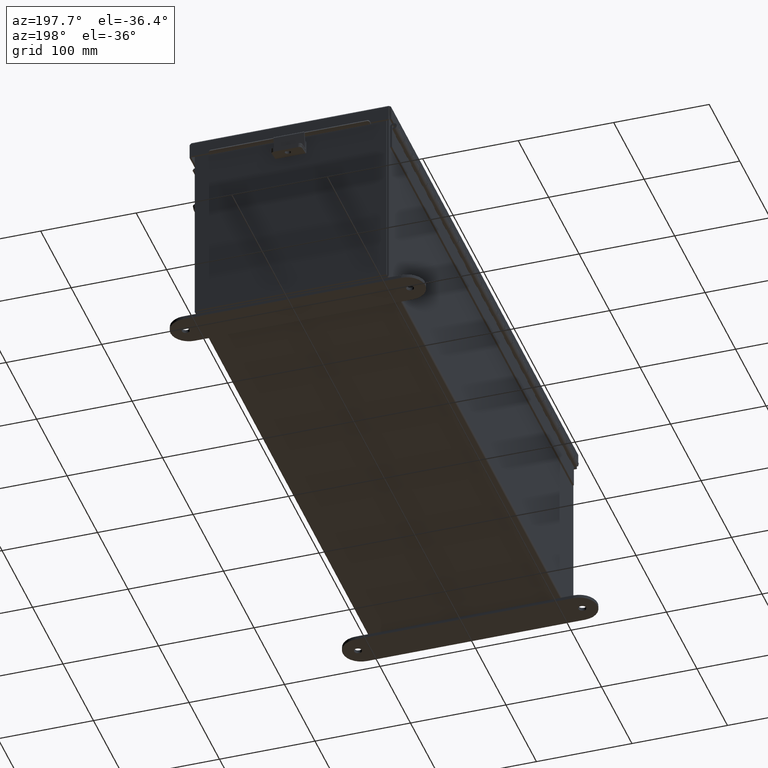
[diagram: clean part render]
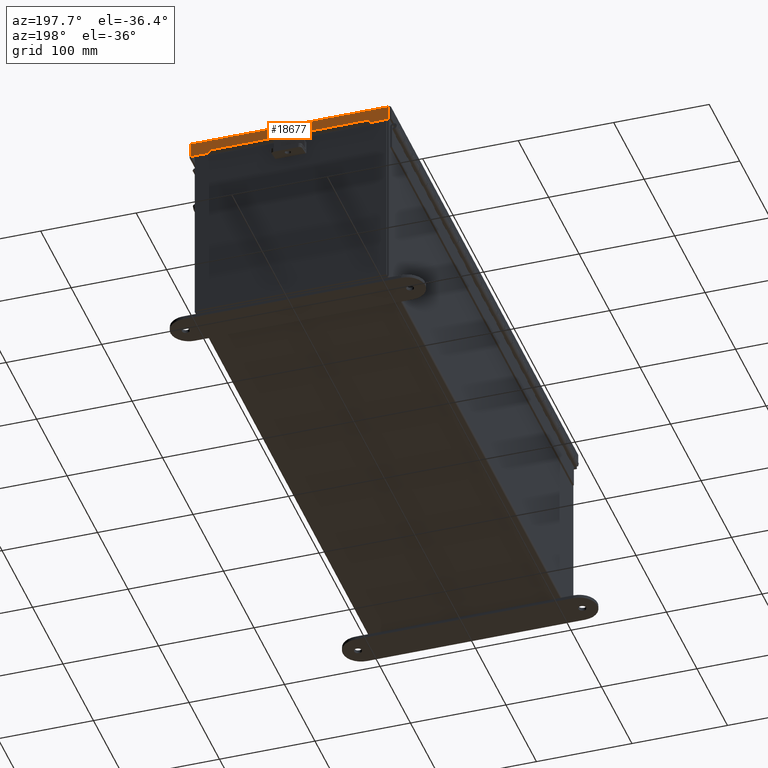
[diagram: same view with one face highlighted and labeled with its STEP entity id]
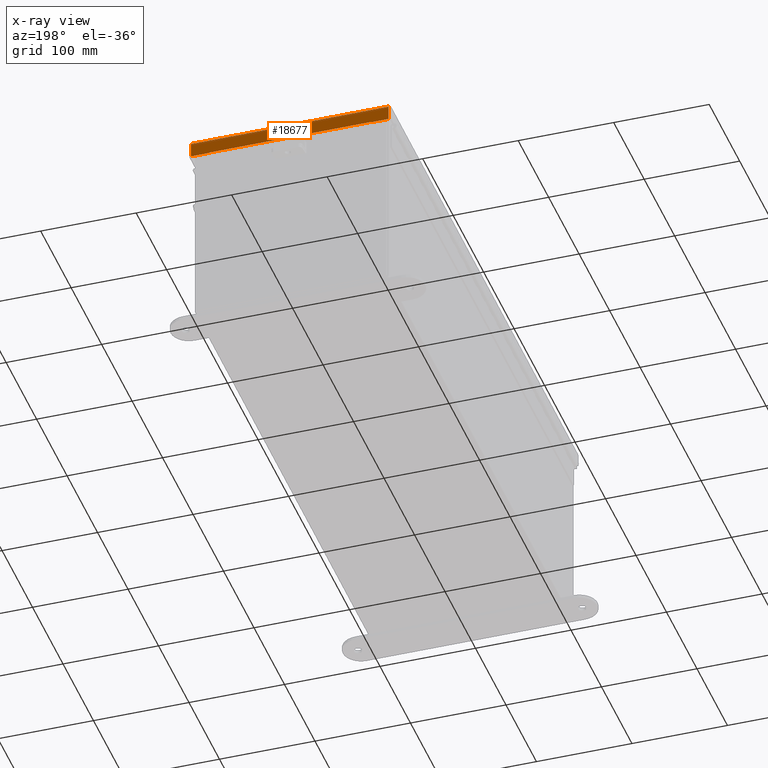
[diagram: x-ray of the same camera — body ghosted, the highlighted face saturated]
A machine part, auxiliary view. The second image highlights one B-rep face of the part: STEP entity #18677.
The next image is the same camera in x-ray: the body ghosted, the highlighted face saturated — about 0% of this face is hidden behind the body in this view.
In plain terms, the highlighted planar face has unit normal (-0, -1, -0).
Its self-contained STEP definition (entity closure, byte-faithful):
#241 = VERTEX_POINT ( 'NONE', #8591 ) ;
#270 = LINE ( 'NONE', #11822, #18362 ) ;
#674 = DIRECTION ( 'NONE',  ( -1.401985044024272200E-013, -1.401985044024272200E-013, -1.000000000000000000 ) ) ;
#724 = VECTOR ( 'NONE', #674, 39.37007874015748100 ) ;
#1341 = DIRECTION ( 'NONE',  ( -2.922740589190080400E-032, -1.000000000000000000, 3.569293475308526100E-015 ) ) ;
#2226 = EDGE_CURVE ( 'NONE', #18067, #19550, #3474, .T. ) ;
#2588 = CARTESIAN_POINT ( 'NONE',  ( -5.335640612625514100E-018, 12.15625000000000000, 0.6122999999999994000 ) ) ;
#2689 = VECTOR ( 'NONE', #20770, 39.37007874015748100 ) ;
#3181 = CARTESIAN_POINT ( 'NONE',  ( -4.074478932188135600, 12.15624999999999800, 0.01300000000000010700 ) ) ;
#3474 = LINE ( 'NONE', #2588, #12225 ) ;
#4222 = EDGE_LOOP ( 'NONE', ( #16762, #7912, #6290, #20990, #14218, #7021, #11458, #10936 ) ) ;
#4854 = CARTESIAN_POINT ( 'NONE',  ( 4.074478932188130300, 12.15624999999999800, 0.0000000000000000000 ) ) ;
#5229 = VERTEX_POINT ( 'NONE', #7531 ) ;
#5827 = CARTESIAN_POINT ( 'NONE',  ( 3.324478932188128500, 12.15625000000000000, 0.5967115427318815400 ) ) ;
#5846 = VECTOR ( 'NONE', #14299, 39.37007874015748100 ) ;
#5923 = LINE ( 'NONE', #21713, #724 ) ;
#6048 = DIRECTION ( 'NONE',  ( 1.000000000000000000, -1.415839178030353600E-032, -0.0000000000000000000 ) ) ;
#6148 = CARTESIAN_POINT ( 'NONE',  ( -4.074478932188140100, 12.15624999999999800, -4.370956789862821100E-014 ) ) ;
#6290 = ORIENTED_EDGE ( 'NONE', *, *, #20469, .F. ) ;
#6615 = DIRECTION ( 'NONE',  ( -0.0000000000000000000, 3.569293475308526100E-015, 1.000000000000000000 ) ) ;
#6779 = LINE ( 'NONE', #18908, #2689 ) ;
#7021 = ORIENTED_EDGE ( 'NONE', *, *, #20474, .T. ) ;
#7531 = CARTESIAN_POINT ( 'NONE',  ( 4.074478932188135600, 12.15624999999999800, 0.01300000000000010700 ) ) ;
#7912 = ORIENTED_EDGE ( 'NONE', *, *, #2226, .T. ) ;
#8275 = CARTESIAN_POINT ( 'NONE',  ( 3.324478932188130300, 12.15625000000000000, 0.6122999999999994000 ) ) ;
#8591 = CARTESIAN_POINT ( 'NONE',  ( -3.324478932188140500, 12.15625000000000000, 0.6123000000000005100 ) ) ;
#9627 = VECTOR ( 'NONE', #6615, 39.37007874015748100 ) ;
#10170 = DIRECTION ( 'NONE',  ( 1.000000000000000000, 9.424794568657269300E-033, 8.216084191471489100E-018 ) ) ;
#10765 = CARTESIAN_POINT ( 'NONE',  ( -4.074478932188140100, 12.15625000000000000, 0.6122999999999994000 ) ) ;
#10936 = ORIENTED_EDGE ( 'NONE', *, *, #16152, .F. ) ;
#11458 = ORIENTED_EDGE ( 'NONE', *, *, #18333, .F. ) ;
#11591 = FACE_OUTER_BOUND ( 'NONE', #4222, .T. ) ;
#11817 = CARTESIAN_POINT ( 'NONE',  ( 0.0000000000000000000, 12.15624999999999800, -4.370956789862821100E-014 ) ) ;
#11822 = CARTESIAN_POINT ( 'NONE',  ( -5.335640612625514100E-018, 12.15625000000000000, 0.6122999999999994000 ) ) ;
#12225 = VECTOR ( 'NONE', #20131, 39.37007874015748100 ) ;
#13596 = DIRECTION ( 'NONE',  ( 0.0000000000000000000, -3.569293475308526100E-015, -1.000000000000000000 ) ) ;
#13792 = AXIS2_PLACEMENT_3D ( 'NONE', #11817, #1341, #13596 ) ;
#13803 = EDGE_CURVE ( 'NONE', #18067, #15127, #5923, .T. ) ;
#14218 = ORIENTED_EDGE ( 'NONE', *, *, #21172, .T. ) ;
#14299 = DIRECTION ( 'NONE',  ( 0.0000000000000000000, 1.401985044024253800E-013, 1.000000000000000000 ) ) ;
#15127 = VERTEX_POINT ( 'NONE', #5827 ) ;
#15180 = LINE ( 'NONE', #19515, #5846 ) ;
#15615 = VECTOR ( 'NONE', #20183, 39.37007874015748100 ) ;
#15919 = EDGE_CURVE ( 'NONE', #18754, #5229, #16380, .T. ) ;
#16080 = CARTESIAN_POINT ( 'NONE',  ( 4.074478932188130300, 12.15625000000000000, 0.6122999999999994000 ) ) ;
#16146 = LINE ( 'NONE', #6148, #15615 ) ;
#16152 = EDGE_CURVE ( 'NONE', #15127, #18509, #6779, .T. ) ;
#16380 = LINE ( 'NONE', #18288, #20520 ) ;
#16762 = ORIENTED_EDGE ( 'NONE', *, *, #13803, .F. ) ;
#18067 = VERTEX_POINT ( 'NONE', #8275 ) ;
#18288 = CARTESIAN_POINT ( 'NONE',  ( 4.156250000000000000, 12.15624999999999800, 0.01300000000000010700 ) ) ;
#18333 = EDGE_CURVE ( 'NONE', #18509, #241, #15180, .T. ) ;
#18362 = VECTOR ( 'NONE', #10170, 39.37007874015748100 ) ;
#18509 = VERTEX_POINT ( 'NONE', #21839 ) ;
#18677 = ADVANCED_FACE ( 'NONE', ( #11591 ), #22375, .F. ) ;
#18754 = VERTEX_POINT ( 'NONE', #3181 ) ;
#18908 = CARTESIAN_POINT ( 'NONE',  ( 3.324478932188130300, 12.15624999999999800, 0.5967115427318815400 ) ) ;
#18920 = LINE ( 'NONE', #4854, #9627 ) ;
#19515 = CARTESIAN_POINT ( 'NONE',  ( -3.324478932188140500, 12.15624999999999800, 0.5967115427318815400 ) ) ;
#19550 = VERTEX_POINT ( 'NONE', #16080 ) ;
#20098 = VERTEX_POINT ( 'NONE', #10765 ) ;
#20131 = DIRECTION ( 'NONE',  ( 1.000000000000000000, 9.424794568657269300E-033, 8.216084191471489100E-018 ) ) ;
#20183 = DIRECTION ( 'NONE',  ( 0.0000000000000000000, 3.569293475308526100E-015, 1.000000000000000000 ) ) ;
#20469 = EDGE_CURVE ( 'NONE', #5229, #19550, #18920, .T. ) ;
#20474 = EDGE_CURVE ( 'NONE', #20098, #241, #270, .T. ) ;
#20520 = VECTOR ( 'NONE', #6048, 39.37007874015748100 ) ;
#20770 = DIRECTION ( 'NONE',  ( -1.000000000000000000, -1.049351150785308100E-032, -0.0000000000000000000 ) ) ;
#20990 = ORIENTED_EDGE ( 'NONE', *, *, #15919, .F. ) ;
#21172 = EDGE_CURVE ( 'NONE', #18754, #20098, #16146, .T. ) ;
#21713 = CARTESIAN_POINT ( 'NONE',  ( 3.324478932188130300, 12.15625000000000000, 0.6123000000000005100 ) ) ;
#21839 = CARTESIAN_POINT ( 'NONE',  ( -3.324478932188140500, 12.15625000000000000, 0.5967115427318815400 ) ) ;
#22375 = PLANE ( 'NONE',  #13792 ) ;